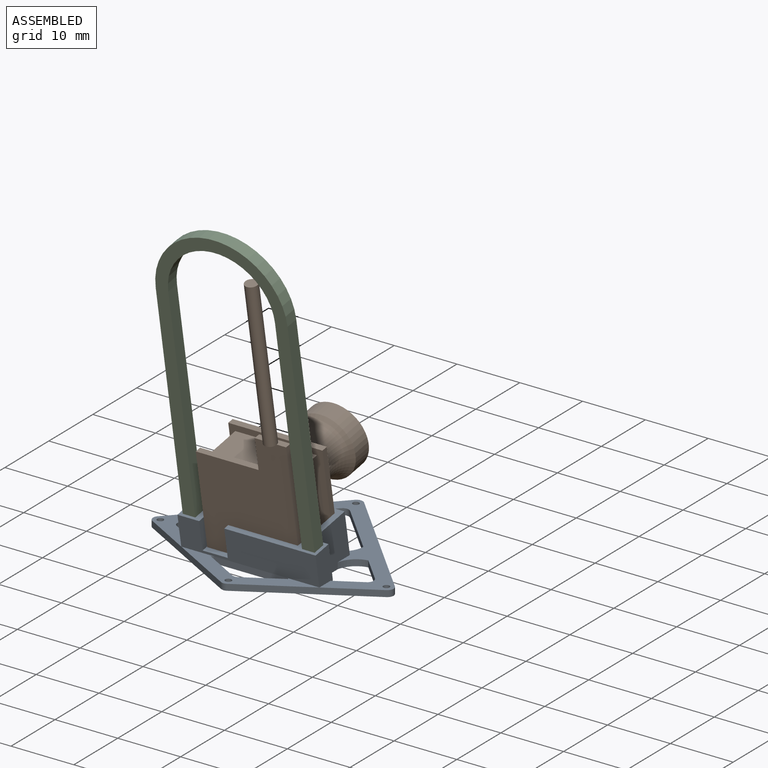
[diagram: assembled view]
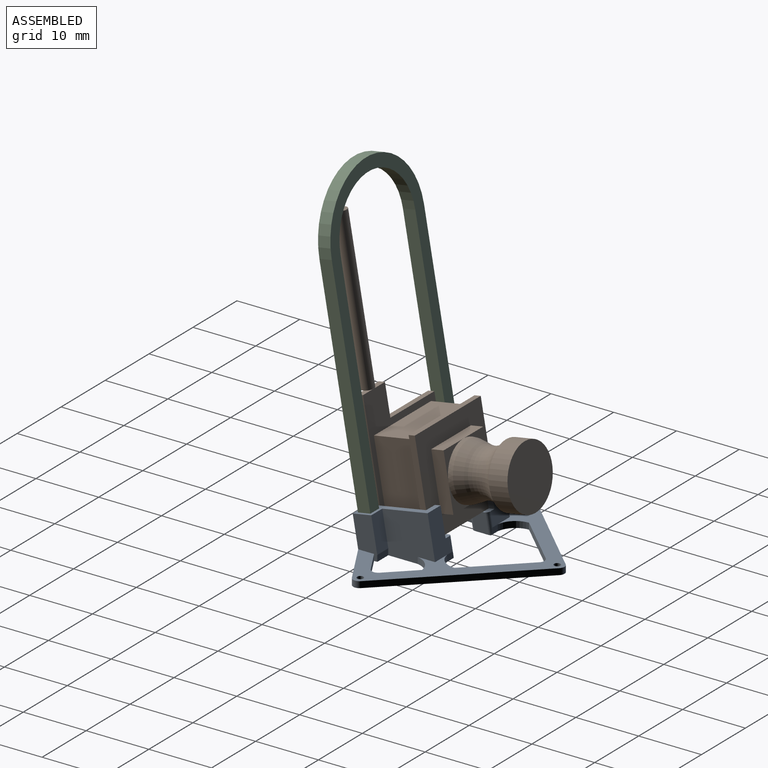
[diagram: assembled view, second angle]
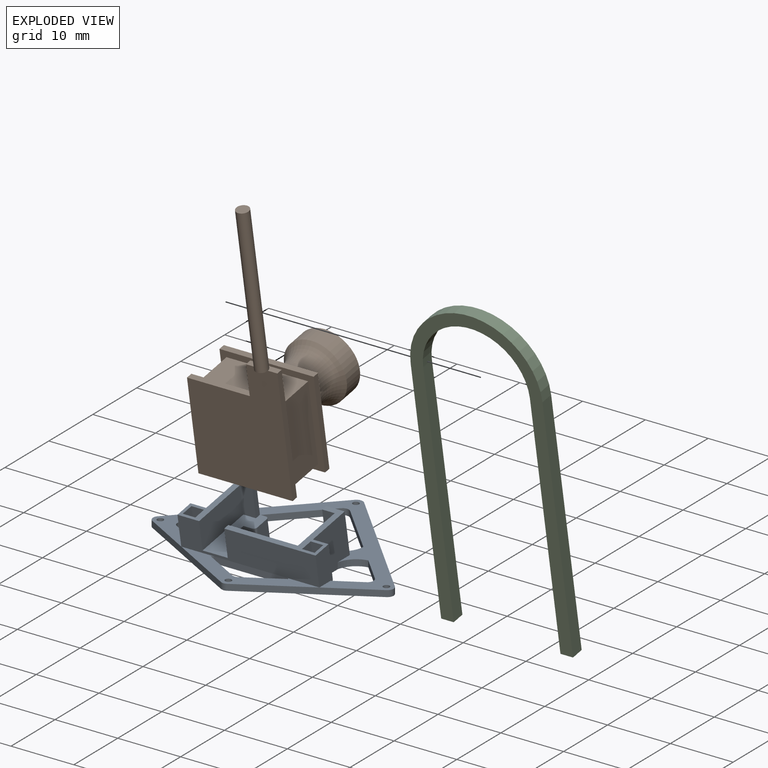
[diagram: exploded view]
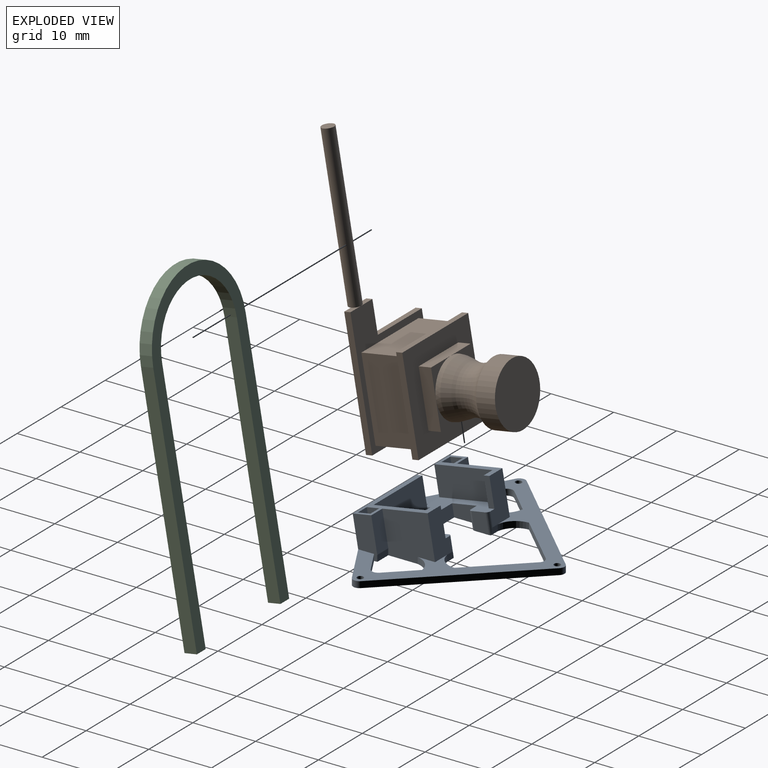
[diagram: exploded view, second angle]
ASSEMBLY  parts=3 mates=6
PART A: 81 faces, bbox 38.3x31.3x7.8 mm
  f0: plane 38.33x31.26mm, normal (0,0,-1), area 328.7mm2, adj f1,f2,f11,f14,f15,f16,f18,f19
  f1: plane 4.11x2.34mm, normal (0.49,0.87,0), area 4.7mm2, adj f0,f4,f18,f78
  f2: plane 4.11x2.34mm, normal (-0.49,0.87,0), area 4.7mm2, adj f0,f4,f37,f69
  f3: plane 21.99x6.1mm, normal (0,0,1), area 43.7mm2, adj f15,f16,f24,f25,f26,f32,f33,f34
  f4: plane 38.32x25.15mm, normal (0,0,1), area 165.2mm2, adj f1,f2,f10,f13,f14,f18,f19,f20
  f5: plane 5.36x2.91mm, normal (-1,0,0), area 10.5mm2, adj f17,f47,f74,f76
  f6: plane 2.03x2mm, normal (0,0,1), area 4.1mm2, adj f7,f68,f71,f72
  f7: plane 5.36x2.91mm, normal (1,0,0), area 10.5mm2, adj f6,f8,f68,f71
  f8: plane 14.55x10.18mm, normal (0,-0.17,0.98), area 25.4mm2, adj f7,f9,f10,f46,f48,f49,f50,f54
  f9: plane 11.1x4.53mm, normal (0,0.98,0.17), area 51.1mm2, adj f8,f12,f54,f66
  f10: plane 6.72x3.87mm, normal (0,0.98,0.17), area 22.2mm2, adj f4,f8,f12,f29,f46,f50,f63
  f11: plane 1.51x1mm, normal (0,1,0), area 1.4mm2, adj f0,f13,f30,f64
  f12: plane 15.1x10.18mm, normal (0,-0.17,0.98), area 67.8mm2, adj f9,f10,f13,f48,f49,f50,f51,f52
  f13: plane 6.72x3.87mm, normal (0,0.98,0.17), area 22.2mm2, adj f4,f11,f12,f38,f47,f51,f64
  f14: cylinder r=3.53mm len=2.94mm, axis (0,0,-1), area 4.3mm2, adj f0,f4,f19,f38
  f15: cylinder r=0.57mm len=1mm, axis (0,0,-1), area 0.4mm2, adj f0,f3,f32,f45
  f16: cylinder r=0.57mm len=1mm, axis (0,0,-1), area 0.4mm2, adj f0,f3,f34,f45
  f17: plane 2.03x2mm, normal (0,0,1), area 4.1mm2, adj f5,f74,f75,f76
  f18: cylinder r=1mm len=1.56mm, axis (0,0,-1), area 1.8mm2, adj f0,f1,f4,f19
  f19: plane 4.07x3.9mm, normal (0.72,-0.69,0), area 5.6mm2, adj f0,f4,f14,f18
  f20: plane 18.93x18.16mm, normal (0.72,0.69,0), area 26.2mm2, adj f0,f4,f21,f39
  f21: cylinder r=1mm len=1.44mm, axis (0,0,-1), area 1.6mm2, adj f0,f4,f20,f22
  f22: plane 18.93x18.16mm, normal (-0.72,0.69,0), area 26.2mm2, adj f0,f4,f21,f23
  f23: cylinder r=1mm len=1.56mm, axis (0,0,-1), area 1.8mm2, adj f0,f4,f22,f24
  f24: plane 18.16x10.33mm, normal (-0.49,-0.87,0), area 20.9mm2, adj f0,f3,f4,f23,f25,f73
  f25: cylinder r=1mm len=1mm, axis (0,0,-1), area 1mm2, adj f0,f3,f24,f26
  f26: plane 18.16x10.33mm, normal (0.49,-0.87,0), area 20.9mm2, adj f0,f3,f4,f25,f39,f67
  f27: plane 8.11x7.78mm, normal (-0.72,-0.69,0), area 11.2mm2, adj f0,f4,f28,f44
  f28: cylinder r=3.15mm len=3.06mm, axis (0,0,-1), area 4.5mm2, adj f0,f4,f27,f29
  f29: plane 1.51x1mm, normal (0,1,0), area 1.4mm2, adj f0,f10,f28,f63
  f30: cylinder r=3.15mm len=3.06mm, axis (0,0,-1), area 4.5mm2, adj f0,f4,f11,f31
  f31: plane 8.11x7.78mm, normal (0.72,-0.69,0), area 11.2mm2, adj f0,f4,f30,f44
  f32: plane 5.68x3.23mm, normal (-0.49,0.87,0), area 6.5mm2, adj f0,f3,f15,f33
  f33: cylinder r=1mm len=1mm, axis (0,0,-1), area 1mm2, adj f0,f3,f32,f34
  f34: plane 5.68x3.23mm, normal (0.49,0.87,0), area 6.5mm2, adj f0,f3,f16,f33
  f35: cylinder r=3.53mm len=2.94mm, axis (0,0,-1), area 4.3mm2, adj f0,f4,f36,f46
  f36: plane 4.07x3.9mm, normal (-0.72,-0.69,0), area 5.6mm2, adj f0,f4,f35,f37
  f37: cylinder r=1mm len=1.56mm, axis (0,0,-1), area 1.8mm2, adj f0,f2,f4,f36
  f38: plane 8.41x7.72mm, normal (-1,0,0), area 50mm2, adj f0,f4,f13,f14,f47,f77,f80
  f39: cylinder r=1mm len=1.56mm, axis (0,0,-1), area 1.8mm2, adj f0,f4,f20,f26
  f40: cylinder r=0.5mm len=1mm, axis (0,0,-1), area 3.1mm2, adj f0,f4
  f41: cylinder r=0.5mm len=1mm, axis (0,0,-1), area 3.1mm2, adj f0,f4
  f42: cylinder r=0.5mm len=1mm, axis (0,0,-1), area 3.1mm2, adj f0,f4
  f43: cylinder r=0.5mm len=1mm, axis (0,0,-1), area 3.1mm2, adj f0,f3
  f44: cylinder r=1mm len=1.44mm, axis (0,0,-1), area 1.6mm2, adj f0,f4,f27,f31
  f45: plane 11.58x1mm, normal (0,-1,0), area 11.6mm2, adj f0,f15,f16,f48
  f46: plane 8.41x7.72mm, normal (1,0,0), area 50mm2, adj f0,f4,f8,f10,f35,f70,f79
  f47: plane 10.18x5.45mm, normal (0,-0.17,0.98), area 15.2mm2, adj f5,f13,f38,f48,f51,f52,f53,f74
  f48: plane 22x4.92mm, normal (0,-0.98,-0.17), area 91.6mm2, adj f3,f8,f12,f45,f47,f53,f66,f67
  f49: plane 4.53x2mm, normal (0,-0.98,-0.17), area 9.2mm2, adj f8,f12,f50,f54
  f50: plane 4.69x1.71mm, normal (-1,0,0), area 4.2mm2, adj f8,f10,f12,f49
  f51: plane 4.69x1.71mm, normal (1,0,0), area 4.2mm2, adj f12,f13,f47,f52
  f52: plane 4.53x2mm, normal (0,-0.98,-0.17), area 9.2mm2, adj f12,f47,f51,f53
  f53: plane 10.08x6.17mm, normal (1,0,0), area 43.3mm2, adj f12,f47,f48,f52
  f54: plane 9.17x6.01mm, normal (-1,0,0), area 39.1mm2, adj f8,f9,f12,f49
  f55: plane 3.1x2.68mm, normal (-1,0,0), area 6.4mm2, adj f0,f12,f62,f63
  f56: plane 3.1x2.68mm, normal (1,0,0), area 6.4mm2, adj f0,f12,f64,f65
  f57: plane 2.64x1.37mm, normal (0,-0.98,-0.17), area 3.7mm2, adj f0,f12,f61,f62
  f58: plane 2.64x1.37mm, normal (0,-0.98,-0.17), area 3.7mm2, adj f0,f12,f59,f65
  f59: plane 4.4x2.64mm, normal (1,0,0), area 9.3mm2, adj f0,f12,f58,f60
  f60: plane 12x1.94mm, normal (0,0.98,0.17), area 23.7mm2, adj f0,f12,f59,f61
  f61: plane 4.4x2.64mm, normal (-1,0,0), area 9.3mm2, adj f0,f12,f57,f60
  f62: cylinder r=0.5mm len=2.81mm, axis (0,-0.17,0.98), area 2.1mm2, adj f0,f12,f55,f57
  f63: cylinder r=0.5mm len=3.25mm, axis (0,0.17,-0.98), area 2.2mm2, adj f0,f10,f12,f29,f55
  f64: cylinder r=0.5mm len=3.25mm, axis (0,-0.17,0.98), area 2.2mm2, adj f0,f11,f12,f13,f56
  f65: cylinder r=0.5mm len=2.81mm, axis (0,-0.17,0.98), area 2.1mm2, adj f0,f12,f56,f58
  f66: plane 4.69x1.71mm, normal (-1,0,0), area 4.2mm2, adj f8,f9,f12,f48
  f67: plane 0.01x0mm, normal (0,0,-1), area 0mm2, adj f26,f48,f69
  f68: plane 5.01x2mm, normal (0,0.98,0.17), area 10.2mm2, adj f6,f7,f8,f72
  f69: plane 6.45x3.92mm, normal (1,0,0), area 16.3mm2, adj f0,f2,f4,f8,f48,f67,f70,f79
  f70: plane 5.45x2.5mm, normal (0,0.98,0.17), area 13.8mm2, adj f8,f46,f69,f79
  f71: plane 5.36x2mm, normal (0,-0.98,-0.17), area 10.9mm2, adj f6,f7,f8,f72
  f72: plane 5.36x2.91mm, normal (-1,0,0), area 10.5mm2, adj f6,f8,f68,f71
  f73: plane 0.01x0mm, normal (0,0,-1), area 0mm2, adj f24,f48,f78
  f74: plane 5.01x2mm, normal (0,0.98,0.17), area 10.2mm2, adj f5,f17,f47,f75
  f75: plane 5.36x2.91mm, normal (1,0,0), area 10.5mm2, adj f17,f47,f74,f76
  f76: plane 5.36x2mm, normal (0,-0.98,-0.17), area 10.9mm2, adj f5,f17,f47,f75
  f77: plane 5.45x2.5mm, normal (0,0.98,0.17), area 13.8mm2, adj f38,f47,f78,f80
  f78: plane 6.45x3.92mm, normal (-1,0,0), area 16.3mm2, adj f0,f1,f4,f47,f48,f73,f77,f80
  f79: plane 2.5x1mm, normal (0,1,0), area 2.5mm2, adj f0,f46,f69,f70
  f80: plane 2.5x1mm, normal (0,1,0), area 2.5mm2, adj f0,f38,f77,f78
PART B: 34 faces, bbox 16.6x21.5x45.8 mm
  f0: plane 2.5x1mm, normal (0,0,1), area 1.7mm2, adj f10,f12,f15,f32
  f1: plane 4.5x4.5mm, normal (0,1,0), area 4.3mm2, adj f23,f24,f30
  f2: plane 4.5x4.5mm, normal (0,1,0), area 4.3mm2, adj f22,f23,f30
  f3: plane 4.5x4.5mm, normal (0,1,0), area 4.3mm2, adj f22,f25,f30
  f4: plane 15x15mm, normal (0,1,0), area 144mm2, adj f6,f8,f9,f13,f22,f23,f24,f25
  f5: plane 15x1mm, normal (-1,0,0), area 15mm2, adj f11,f12,f14,f15
  f6: plane 15x1mm, normal (-1,0,0), area 15mm2, adj f4,f8,f13,f16
  f7: plane 13x6.5mm, normal (0,0,1), area 84.5mm2, adj f15,f16,f17,f19
  f8: plane 15x1mm, normal (0,0,-1), area 15mm2, adj f4,f6,f9,f16
  f9: plane 15x1mm, normal (1,0,0), area 15mm2, adj f4,f8,f13,f16
  f10: plane 20x1mm, normal (1,0,0), area 20mm2, adj f0,f12,f14,f15
  f11: plane 10x1mm, normal (0,0,1), area 10mm2, adj f5,f12,f15,f20
  f12: plane 20x15mm, normal (0,-1,0), area 250mm2, adj f0,f5,f10,f11,f14,f20,f21,f31
  f13: plane 15x1mm, normal (0,0,1), area 15mm2, adj f4,f6,f9,f16
  f14: plane 15x1mm, normal (0,0,-1), area 15mm2, adj f5,f10,f12,f15
  f15: plane 20x15mm, normal (0,1,0), area 81mm2, adj f0,f5,f7,f10,f11,f14,f17,f18
  f16: plane 15x15mm, normal (0,-1,0), area 56mm2, adj f6,f7,f8,f9,f13,f17,f18,f19
  f17: plane 13x6.5mm, normal (1,0,0), area 84.5mm2, adj f7,f15,f16,f18
  f18: plane 13x6.5mm, normal (0,0,-1), area 84.5mm2, adj f15,f16,f17,f19
  f19: plane 13x6.5mm, normal (-1,0,0), area 84.5mm2, adj f7,f15,f16,f18
  f20: plane 5x1mm, normal (-1,0,0), area 5mm2, adj f11,f12,f15,f21
  f21: plane 2.5x1mm, normal (0,0,1), area 1.7mm2, adj f12,f15,f20,f32
  f22: plane 9x2mm, normal (0,0,1), area 18mm2, adj f2,f3,f4,f23,f25
  f23: plane 9x2mm, normal (1,0,0), area 18mm2, adj f1,f2,f4,f22,f24
  f24: plane 9x2mm, normal (0,0,-1), area 18mm2, adj f1,f4,f23,f25,f26
  f25: plane 9x2mm, normal (-1,0,0), area 18mm2, adj f3,f4,f22,f24,f26
  f26: plane 4.5x4.5mm, normal (0,1,0), area 4.3mm2, adj f24,f25,f30
  f27: plane 10x10mm, normal (0,1,0), area 78.5mm2, adj f28
  f28: cylinder r=5mm len=10mm, axis (0,-1,0), area 95.3mm2, adj f27,f29
  f29: torus R=7.65mm, axis (0,-1,0), area 130.3mm2, adj f28,f30
  f30: revolved ~9x9mm, area 61.6mm2, adj f1,f2,f3,f26,f29
  f31: plane 2x1mm, normal (0,0,-1), area 1.6mm2, adj f12,f32
  f32: cylinder r=1mm len=25mm, axis (0,0,-1), area 157.1mm2, adj f0,f21,f31,f33
  f33: plane 2x2mm, normal (0,0,1), area 3.1mm2, adj f32
PART C: 10 faces, bbox 21x50.5x2 mm
  f0: cylinder r=10.5mm len=21mm, axis (0,0,-1), area 66mm2, adj f1,f7,f8,f9
  f1: plane 40x2mm, normal (-1,0,0), area 80mm2, adj f0,f2,f8,f9
  f2: plane 2x2mm, normal (0,-1,0), area 4mm2, adj f1,f3,f8,f9
  f3: plane 40x2mm, normal (1,0,0), area 80mm2, adj f2,f4,f8,f9
  f4: cylinder r=8.5mm len=17mm, axis (0,0,-1), area 53.4mm2, adj f3,f5,f8,f9
  f5: plane 40x2mm, normal (-1,0,0), area 80mm2, adj f4,f6,f8,f9
  f6: plane 2x2mm, normal (0,-1,0), area 4mm2, adj f5,f7,f8,f9
  f7: plane 40x2mm, normal (1,0,0), area 80mm2, adj f0,f6,f8,f9
  f8: plane 50.5x21mm, normal (0,0,1), area 219.7mm2, adj f0,f1,f2,f3,f4,f5,f6,f7
  f9: plane 50.5x21mm, normal (0,0,-1), area 219.7mm2, adj f0,f1,f2,f3,f4,f5,f6,f7
PLACE A t=(-3.57,1.16,-2.14)mm fixed
PLACE B rot(axis=(1,0,0),10deg) t=(-3.52,-1.26,0.89)mm
PLACE C rot(axis=(1,0,0),100deg) t=(-3.57,-9.06,-0.49)mm
MATE planar C.f1 <-> A.f75  axis (-1,0,0) through (-14.07,-12.54,19.21)mm
MATE planar B.f8 <-> A.f12  axis (0,0.17,-0.98) through (-3.52,-1.75,0.8)mm
MATE planar B.f12 <-> A.f9  axis (0,-0.98,-0.17) through (-3.02,-11.11,7.78)mm
MATE planar C.f8 <-> A.f74  axis (0,-0.98,-0.17) through (-3.57,-14.75,26.01)mm
MATE planar B.f9 <-> A.f54  axis (1,0,0) through (3.98,-3.06,8.18)mm
MATE planar C.f2 <-> A.f12  axis (0,0.17,-0.98) through (-13.07,-9.06,-0.49)mm
